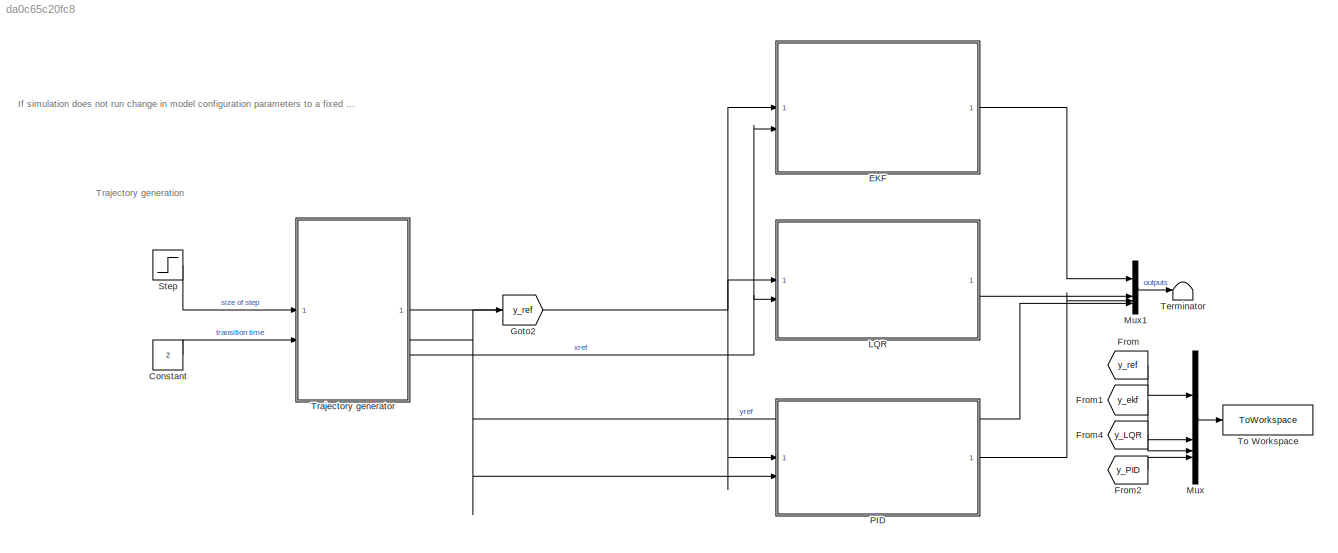
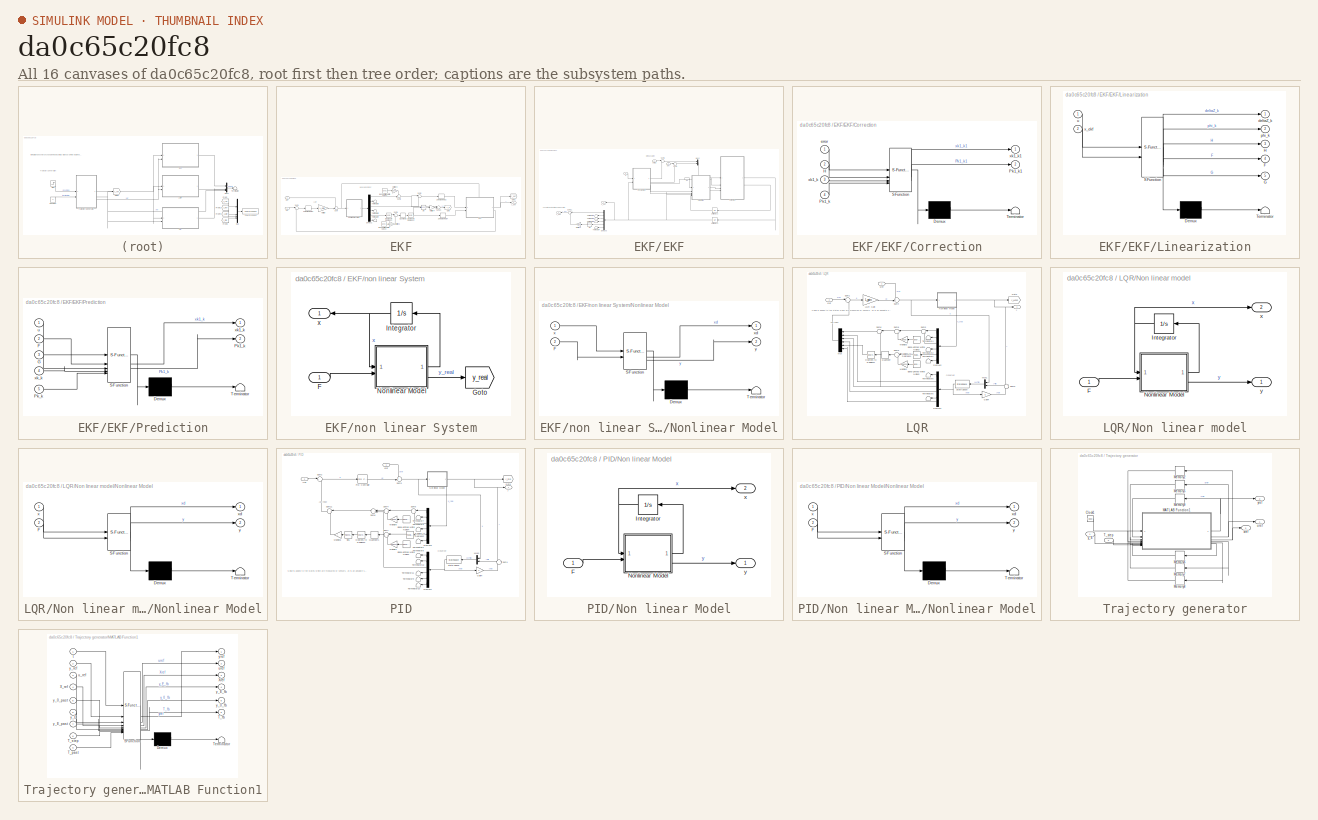
[diagram: thumbnail index - all 16 canvases of the model, root first then tree order]
MODEL slx_da0c65c20fc8
KIND model
CONFIG AbsTol = auto
CONFIG EnableMultiTasking = off
CONFIG FixedStep = 0.001
CONFIG MaxStep = auto
CONFIG MinStep = auto
CONFIG RelTol = 1e-3
CONFIG SampleTimeConstraint = Unconstrained
CONFIG SolverName = VariableStepAuto
CONFIG StartTime = 0.0
CONFIG StopTime = 10
BLOCK [Constant] Constant
  Value = 2
BLOCK [SubSystem] EKF
BLOCK [Reference] EKF/Band-Limited White Noise2  REF=simulink/Sources/Band-Limited
White Noise
  SourceBlock = simulink/Sources/Band-Limited\nWhite Noise
  SourceType = Band-Limited White Noise.
BLOCK [Reference] EKF/Band-Limited White Noise3  REF=simulink/Sources/Band-Limited
White Noise
  SourceBlock = simulink/Sources/Band-Limited\nWhite Noise
  SourceType = Band-Limited White Noise.
BLOCK [Reference] EKF/Degrees to Radians1  REF=simulink_extras/Transformations/Degrees to
Radians
  SourceBlock = simulink_extras/Transformations/Degrees to\nRadians
  SourceType = DegreesToRadians
BLOCK [Demux] EKF/Demux2
  Outputs = 6
BLOCK [SubSystem] EKF/EKF
  PortSchema = {"entries":[{"content":{"sides":[{"content":{"connectorIds":["In1","In2"]},"type":"ConnectorPlacement.EquallySpacedRectSide","uuid":"7d448900-18ad-41d5-8be7-5b2f8237e026"},{"content":{"connectorIds":["Out1","Out2"],"side":"RIGHT"},"type":"ConnectorPlacement.EquallySpacedRectSide","uuid":"f5f89615-8db2-446f-9ddf-3fbf985b739e"},{"content":{"connectorIds":["In3"],"side":"TOP"},"type":"ConnectorPlacem...<+258ch>
BLOCK [SubSystem] EKF/EKF/Correction
  ErrorFcn = Stateflow.Translate.translate
  PermitHierarchicalResolution = ExplicitOnly
  SFBlockType = MATLAB Function
  TreatAsAtomicUnit = on
BLOCK [Demux] EKF/EKF/Correction/ Demux 
  Outputs = 1
BLOCK [S-Function] EKF/EKF/Correction/ SFunction 
  EnableBusSupport = on
  FunctionName = sf_sfun
  Parameters = param
  PortCounts = [4 3]
  SFcnIsStateOwnerBlock = off
  SFunctionDeploymentMode = off
  Tag = Stateflow S-Function 9
BLOCK [Terminator] EKF/EKF/Correction/ Terminator 
BLOCK [Inport] EKF/EKF/Correction/H
  Port = 2
BLOCK [Inport] EKF/EKF/Correction/Pk1_k
  Port = 4
BLOCK [Outport] EKF/EKF/Correction/Pk1_k1
  Port = 2
BLOCK [Inport] EKF/EKF/Correction/error
BLOCK [Inport] EKF/EKF/Correction/xk1_k
  Port = 3
BLOCK [Outport] EKF/EKF/Correction/xk1_k1
BLOCK [Demux] EKF/EKF/Demux3
  Outputs = 6
BLOCK [SubSystem] EKF/EKF/Linearization
  ErrorFcn = Stateflow.Translate.translate
  PermitHierarchicalResolution = ExplicitOnly
  SFBlockType = MATLAB Function
  TreatAsAtomicUnit = on
BLOCK [Demux] EKF/EKF/Linearization/ Demux 
  Outputs = 1
BLOCK [S-Function] EKF/EKF/Linearization/ SFunction 
  EnableBusSupport = on
  FunctionName = sf_sfun
  Parameters = param
  PortCounts = [2 6]
  SFcnIsStateOwnerBlock = off
  SFunctionDeploymentMode = off
  Tag = Stateflow S-Function 8
BLOCK [Terminator] EKF/EKF/Linearization/ Terminator 
BLOCK [Outport] EKF/EKF/Linearization/F
  Port = 4
BLOCK [Outport] EKF/EKF/Linearization/G
  Port = 5
BLOCK [Outport] EKF/EKF/Linearization/H
  Port = 3
BLOCK [Outport] EKF/EKF/Linearization/deltaZ_k
BLOCK [Outport] EKF/EKF/Linearization/phi_k
  Port = 2
BLOCK [Inport] EKF/EKF/Linearization/u
BLOCK [Inport] EKF/EKF/Linearization/x_ekf
  Port = 2
BLOCK [Gain] EKF/EKF/Multiply2
  Gain = param.l
BLOCK [Mux] EKF/EKF/Mux2
  DisplayOption = bar
  Inputs = 2
BLOCK [SubSystem] EKF/EKF/Prediction
  ErrorFcn = Stateflow.Translate.translate
  PermitHierarchicalResolution = ExplicitOnly
  SFBlockType = MATLAB Function
  TreatAsAtomicUnit = on
BLOCK [Demux] EKF/EKF/Prediction/ Demux 
  Outputs = 1
BLOCK [S-Function] EKF/EKF/Prediction/ SFunction 
  EnableBusSupport = on
  FunctionName = sf_sfun
  Parameters = param
  PortCounts = [5 3]
  SFcnIsStateOwnerBlock = off
  SFunctionDeploymentMode = off
  Tag = Stateflow S-Function 7
BLOCK [Terminator] EKF/EKF/Prediction/ Terminator 
BLOCK [Inport] EKF/EKF/Prediction/F
  Port = 2
BLOCK [Inport] EKF/EKF/Prediction/G
  Port = 3
BLOCK [Outport] EKF/EKF/Prediction/Pk1_k
  Port = 2
BLOCK [Inport] EKF/EKF/Prediction/Pk_k
  Port = 5
BLOCK [Inport] EKF/EKF/Prediction/u
BLOCK [Outport] EKF/EKF/Prediction/xk1_k
BLOCK [Inport] EKF/EKF/Prediction/xk_k
  Port = 4
BLOCK [Trigonometry] EKF/EKF/Sin
BLOCK [Sum] EKF/EKF/Sum11
  Inputs = |++
BLOCK [Sum] EKF/EKF/Sum8
  Inputs = |+-
BLOCK [Sum] EKF/EKF/Sum9
  Inputs = |+-
BLOCK [Terminator] EKF/EKF/Terminator1
BLOCK [Terminator] EKF/EKF/Terminator2
BLOCK [Terminator] EKF/EKF/Terminator3
BLOCK [Terminator] EKF/EKF/Terminator4
BLOCK [UnitDelay] EKF/EKF/Unit Delay2
  HasFrameUpgradeWarning = on
  SampleTime = param.Ts
BLOCK [UnitDelay] EKF/EKF/Unit Delay3
  HasFrameUpgradeWarning = on
  InitialCondition = [0 0 0 0 0 0]'
  SampleTime = param.Ts
BLOCK [Inport] EKF/EKF/deltaz
BLOCK [Inport] EKF/EKF/phi
  Port = 2
BLOCK [Inport] EKF/EKF/u
  Port = 3
BLOCK [InportShadow] EKF/EKF/u1
  Port = 3
BLOCK [Outport] EKF/EKF/x_ekf
  Port = 2
BLOCK [Outport] EKF/EKF/y_ekf
BLOCK [Goto] EKF/Goto
  GotoTag = y_d
  TagVisibility = global
BLOCK [Goto] EKF/Goto1
  GotoTag = y_ekf
  TagVisibility = global
BLOCK [Gain] EKF/Multiply
  Gain = L_gain
  Multiplication = Matrix(K*u) (u vector)
BLOCK [Gain] EKF/Multiply2
  Gain = 360/1024
BLOCK [Gain] EKF/Multiply3
  Gain = 1/2000
BLOCK [Gain] EKF/Multiply4
  Gain = l
BLOCK [Quantizer] EKF/Quantizer2
  QuantizationInterval = 360/1024
BLOCK [Reference] EKF/Radians to Degrees1  REF=simulink_extras/Transformations/Radians
to Degrees
  SourceBlock = simulink_extras/Transformations/Radians\nto Degrees
  SourceType = RadiansToDegrees
BLOCK [Trigonometry] EKF/Sin
BLOCK [Sum] EKF/Sum
  Inputs = ++|
BLOCK [Sum] EKF/Sum1
  Inputs = |+-
BLOCK [Sum] EKF/Sum10
  Inputs = ++|
BLOCK [Sum] EKF/Sum2
  Inputs = |+-
BLOCK [Sum] EKF/Sum8
  Inputs = ++|
BLOCK [Sum] EKF/Sum9
  Inputs = |++
BLOCK [Terminator] EKF/Terminator4
BLOCK [Terminator] EKF/Terminator5
BLOCK [Terminator] EKF/Terminator6
BLOCK [ZeroOrderHold] EKF/Zero-Order Hold2
  SampleTime = param.Ts
BLOCK [ZeroOrderHold] EKF/Zero-Order Hold3
  SampleTime = param.Ts
BLOCK [ZeroOrderHold] EKF/Zero-Order Hold4
  SampleTime = param.Ts
BLOCK [SubSystem] EKF/non linear System
BLOCK [Inport] EKF/non linear System/F
BLOCK [Goto] EKF/non linear System/Goto
  GotoTag = y_real
  TagVisibility = global
BLOCK [Integrator] EKF/non linear System/Integrator
  InitialCondition = [0;0;0;0;0;0]
  NameLocation = top
BLOCK [SubSystem] EKF/non linear System/Nonlinear Model
  ErrorFcn = Stateflow.Translate.translate
  PermitHierarchicalResolution = ExplicitOnly
  SFBlockType = MATLAB Function
  TreatAsAtomicUnit = on
BLOCK [Demux] EKF/non linear System/Nonlinear Model/ Demux 
  Outputs = 1
BLOCK [S-Function] EKF/non linear System/Nonlinear Model/ SFunction 
  EnableBusSupport = on
  FunctionName = sf_sfun
  Parameters = param
  PortCounts = [2 3]
  SFcnIsStateOwnerBlock = off
  SFunctionDeploymentMode = off
  Tag = Stateflow S-Function 10
BLOCK [Terminator] EKF/non linear System/Nonlinear Model/ Terminator 
BLOCK [Inport] EKF/non linear System/Nonlinear Model/F
  Port = 2
BLOCK [Inport] EKF/non linear System/Nonlinear Model/x
BLOCK [Outport] EKF/non linear System/Nonlinear Model/xd
BLOCK [Outport] EKF/non linear System/Nonlinear Model/y
  Port = 2
BLOCK [Outport] EKF/non linear System/x
BLOCK [Inport] EKF/uref
BLOCK [Inport] EKF/xref
  Port = 2
BLOCK [Outport] EKF/y_ekf
BLOCK [From] From
  GotoTag = y_ref
  TagVisibility = global
BLOCK [From] From1
  GotoTag = y_ekf
  TagVisibility = global
BLOCK [From] From2
  GotoTag = y_PID
  TagVisibility = global
BLOCK [From] From4
  GotoTag = y_LQR
  TagVisibility = global
BLOCK [Goto] Goto2
  GotoTag = y_ref
  TagVisibility = global
BLOCK [SubSystem] LQR
BLOCK [Reference] LQR/Band-Limited White Noise2  REF=simulink/Sources/Band-Limited
White Noise
  NameLocation = top
  SourceBlock = simulink/Sources/Band-Limited\nWhite Noise
  SourceType = Band-Limited White Noise.
BLOCK [Reference] LQR/Band-Limited White Noise3  REF=simulink/Sources/Band-Limited
White Noise
  NameLocation = top
  SourceBlock = simulink/Sources/Band-Limited\nWhite Noise
  SourceType = Band-Limited White Noise.
BLOCK [Reference] LQR/Degrees to Radians1  REF=simulink_extras/Transformations/Degrees to
Radians
  NameLocation = top
  SourceBlock = simulink_extras/Transformations/Degrees to\nRadians
  SourceType = DegreesToRadians
BLOCK [Demux] LQR/Demux1
  NameLocation = top
  Outputs = 6
BLOCK [Demux] LQR/Demux2
  NameLocation = top
  Outputs = 6
BLOCK [Gain] LQR/Gain4
  Gain = C
  Multiplication = Matrix(K*u)
BLOCK [Goto] LQR/Goto
  GotoTag = y_LQR
  TagVisibility = global
BLOCK [Gain] LQR/LQR Gain
  Gain = L_gain
  Multiplication = Matrix(K*u) (u vector)
  NameLocation = top
BLOCK [Gain] LQR/Multiply2
  Gain = 360/1024
  NameLocation = top
BLOCK [Gain] LQR/Multiply3
  Gain = 1/2000
  NameLocation = top
BLOCK [Mux] LQR/Mux
  DisplayOption = bar
  Inputs = 6
  NameLocation = top
BLOCK [Mux] LQR/Mux1
  DisplayOption = bar
  Inputs = 2
  NameLocation = top
BLOCK [SubSystem] LQR/Non linear model
  NameLocation = top
  PortSchema = {"entries":[{"content":{"sides":[{"content":{"connectorIds":["In1"]},"type":"ConnectorPlacement.EquallySpacedRectSide","uuid":"1168ee74-8fd3-4705-8c7a-3655de58a2af"},{"content":{"connectorIds":["Out1"],"side":"RIGHT"},"type":"ConnectorPlacement.EquallySpacedRectSide","uuid":"a82eda53-f6cc-410c-ba8f-7e45612c6547"},{"content":{"side":"TOP"},"type":"ConnectorPlacement.EquallySpacedRectSide","uuid":"a...<+372ch>
BLOCK [Inport] LQR/Non linear model/F
BLOCK [Integrator] LQR/Non linear model/Integrator
  InitialCondition = [0;0;0;0;0;0]
  NameLocation = top
BLOCK [SubSystem] LQR/Non linear model/Nonlinear Model
  ErrorFcn = Stateflow.Translate.translate
  PermitHierarchicalResolution = ExplicitOnly
  SFBlockType = MATLAB Function
  TreatAsAtomicUnit = on
BLOCK [Demux] LQR/Non linear model/Nonlinear Model/ Demux 
  Outputs = 1
BLOCK [S-Function] LQR/Non linear model/Nonlinear Model/ SFunction 
  EnableBusSupport = on
  FunctionName = sf_sfun
  Parameters = param
  PortCounts = [2 3]
  SFcnIsStateOwnerBlock = off
  SFunctionDeploymentMode = off
  Tag = Stateflow S-Function 2
BLOCK [Terminator] LQR/Non linear model/Nonlinear Model/ Terminator 
BLOCK [Inport] LQR/Non linear model/Nonlinear Model/F
  Port = 2
BLOCK [Inport] LQR/Non linear model/Nonlinear Model/x
BLOCK [Outport] LQR/Non linear model/Nonlinear Model/xd
BLOCK [Outport] LQR/Non linear model/Nonlinear Model/y
  Port = 2
BLOCK [Outport] LQR/Non linear model/x
  Port = 2
BLOCK [Outport] LQR/Non linear model/y
BLOCK [Quantizer] LQR/Quantizer
  NameLocation = top
  QuantizationInterval = 360/1024
BLOCK [Reference] LQR/Radians to Degrees1  REF=simulink_extras/Transformations/Radians
to Degrees
  NameLocation = top
  SourceBlock = simulink_extras/Transformations/Radians\nto Degrees
  SourceType = RadiansToDegrees
BLOCK [StateSpace] LQR/State-Space
  A = system_l.A
  B = [B LD']
  C = eye(6)
  D = zeros(6,2)
  InitialCondition = 0
  NameLocation = top
BLOCK [Sum] LQR/Sum1
  Inputs = |+-
BLOCK [Sum] LQR/Sum3
  Inputs = +|-
BLOCK [Sum] LQR/Sum4
  Inputs = ++|
BLOCK [Sum] LQR/Sum5
  Inputs = |+-
  NameLocation = top
BLOCK [Sum] LQR/Sum6
  Inputs = |++
  NameLocation = top
BLOCK [Sum] LQR/Sum8
  Inputs = |++
  NameLocation = top
BLOCK [Sum] LQR/Sum9
  Inputs = |++
  NameLocation = top
BLOCK [Terminator] LQR/Terminator1
  NameLocation = top
BLOCK [Terminator] LQR/Terminator2
  NameLocation = top
BLOCK [Terminator] LQR/Terminator4
  NameLocation = top
BLOCK [Terminator] LQR/Terminator5
  NameLocation = top
BLOCK [Terminator] LQR/Terminator6
  NameLocation = top
BLOCK [Inport] LQR/uref
BLOCK [Inport] LQR/xref
  Port = 2
BLOCK [Outport] LQR/y
BLOCK [Mux] Mux
  DisplayOption = bar
BLOCK [Mux] Mux1
  DisplayOption = bar
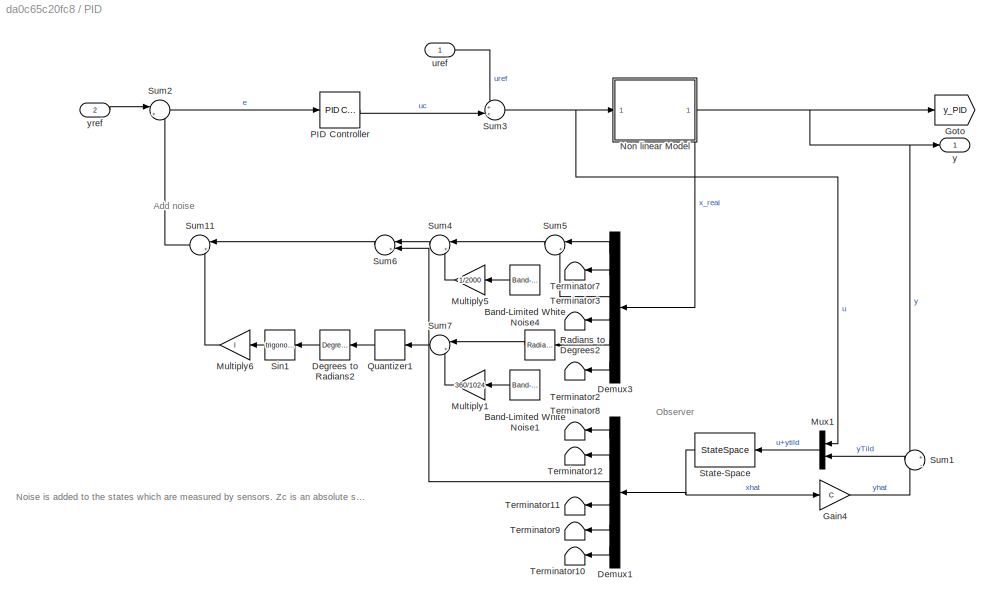
BLOCK [SubSystem] PID
BLOCK [Reference] PID/Band-Limited White Noise1  REF=simulink/Sources/Band-Limited
White Noise
  NameLocation = top
  SourceBlock = simulink/Sources/Band-Limited\nWhite Noise
  SourceType = Band-Limited White Noise.
BLOCK [Reference] PID/Band-Limited White Noise4  REF=simulink/Sources/Band-Limited
White Noise
  NameLocation = top
  SourceBlock = simulink/Sources/Band-Limited\nWhite Noise
  SourceType = Band-Limited White Noise.
BLOCK [Reference] PID/Degrees to Radians2  REF=simulink_extras/Transformations/Degrees to
Radians
  NameLocation = top
  SourceBlock = simulink_extras/Transformations/Degrees to\nRadians
  SourceType = DegreesToRadians
BLOCK [Demux] PID/Demux1
  NameLocation = top
  Outputs = 6
BLOCK [Demux] PID/Demux3
  NameLocation = top
  Outputs = 6
BLOCK [Gain] PID/Gain4
  Gain = C
  Multiplication = Matrix(K*u)
BLOCK [Goto] PID/Goto
  GotoTag = y_PID
  TagVisibility = global
BLOCK [Gain] PID/Multiply1
  Gain = 360/1024
  NameLocation = top
BLOCK [Gain] PID/Multiply5
  Gain = 1/2000
  NameLocation = top
BLOCK [Gain] PID/Multiply6
  Gain = l
  NameLocation = top
BLOCK [Mux] PID/Mux1
  DisplayOption = bar
  Inputs = 2
  NameLocation = top
BLOCK [SubSystem] PID/Non linear Model
  NameLocation = top
  PortSchema = {"entries":[{"content":{"sides":[{"content":{"connectorIds":["In1"]},"type":"ConnectorPlacement.EquallySpacedRectSide","uuid":"1168ee74-8fd3-4705-8c7a-3655de58a2af"},{"content":{"connectorIds":["Out1"],"side":"RIGHT"},"type":"ConnectorPlacement.EquallySpacedRectSide","uuid":"a82eda53-f6cc-410c-ba8f-7e45612c6547"},{"content":{"side":"TOP"},"type":"ConnectorPlacement.EquallySpacedRectSide","uuid":"a...<+372ch>
BLOCK [Inport] PID/Non linear Model/F
BLOCK [Integrator] PID/Non linear Model/Integrator
  InitialCondition = [0;0;0;0;0;0]
  NameLocation = top
BLOCK [SubSystem] PID/Non linear Model/Nonlinear Model
  ErrorFcn = Stateflow.Translate.translate
  PermitHierarchicalResolution = ExplicitOnly
  SFBlockType = MATLAB Function
  TreatAsAtomicUnit = on
BLOCK [Demux] PID/Non linear Model/Nonlinear Model/ Demux 
  Outputs = 1
BLOCK [S-Function] PID/Non linear Model/Nonlinear Model/ SFunction 
  EnableBusSupport = on
  FunctionName = sf_sfun
  Parameters = param
  PortCounts = [2 3]
  SFcnIsStateOwnerBlock = off
  SFunctionDeploymentMode = off
  Tag = Stateflow S-Function 1
BLOCK [Terminator] PID/Non linear Model/Nonlinear Model/ Terminator 
BLOCK [Inport] PID/Non linear Model/Nonlinear Model/F
  Port = 2
BLOCK [Inport] PID/Non linear Model/Nonlinear Model/x
BLOCK [Outport] PID/Non linear Model/Nonlinear Model/xd
BLOCK [Outport] PID/Non linear Model/Nonlinear Model/y
  Port = 2
BLOCK [Outport] PID/Non linear Model/x
  Port = 2
BLOCK [Outport] PID/Non linear Model/y
BLOCK [Reference] PID/PID Controller  REF=slpidlib/PID Controller
  SourceBlock = slpidlib/PID Controller
  SourceType = PID 1dof
BLOCK [Quantizer] PID/Quantizer1
  NameLocation = top
  QuantizationInterval = 360/1024
BLOCK [Reference] PID/Radians to Degrees2  REF=simulink_extras/Transformations/Radians
to Degrees
  NameLocation = top
  SourceBlock = simulink_extras/Transformations/Radians\nto Degrees
  SourceType = RadiansToDegrees
BLOCK [Trigonometry] PID/Sin1
  NameLocation = top
BLOCK [StateSpace] PID/State-Space
  A = system_l.A
  B = [B LD']
  C = eye(6)
  D = zeros(6,2)
  InitialCondition = 0
  NameLocation = top
BLOCK [Sum] PID/Sum1
  Inputs = +|-
BLOCK [Sum] PID/Sum11
  Inputs = |++
  NameLocation = top
BLOCK [Sum] PID/Sum2
  Inputs = |+-
BLOCK [Sum] PID/Sum3
  Inputs = ++|
BLOCK [Sum] PID/Sum4
  Inputs = |++
  NameLocation = top
BLOCK [Sum] PID/Sum5
  Inputs = |+-
  NameLocation = top
BLOCK [Sum] PID/Sum6
  Inputs = |++
  NameLocation = top
BLOCK [Sum] PID/Sum7
  Inputs = |++
  NameLocation = top
BLOCK [Terminator] PID/Terminator10
  NameLocation = top
BLOCK [Terminator] PID/Terminator11
  NameLocation = top
BLOCK [Terminator] PID/Terminator12
  NameLocation = top
BLOCK [Terminator] PID/Terminator2
  NameLocation = top
BLOCK [Terminator] PID/Terminator3
  NameLocation = top
BLOCK [Terminator] PID/Terminator7
  NameLocation = top
BLOCK [Terminator] PID/Terminator8
  NameLocation = top
BLOCK [Terminator] PID/Terminator9
  NameLocation = top
BLOCK [Inport] PID/uref
BLOCK [Outport] PID/y
BLOCK [Inport] PID/yref
  Port = 2
BLOCK [Step] Step
  After = 2
  SampleTime = 0
  Time = 0
BLOCK [Terminator] Terminator
BLOCK [ToWorkspace] To Workspace
  FixptAsFi = on
  MaxDataPoints = inf
  SampleTime = -1
  SaveFormat = Timeseries
  VariableName = simout
BLOCK [SubSystem] Trajectory generator
BLOCK [Clock] Trajectory generator/Clock1
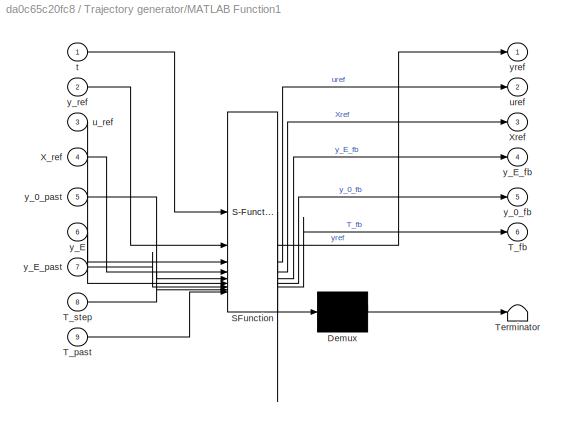
BLOCK [SubSystem] Trajectory generator/MATLAB Function1
  ErrorFcn = Stateflow.Translate.translate
  PermitHierarchicalResolution = ExplicitOnly
  SFBlockType = MATLAB Function
  TreatAsAtomicUnit = on
BLOCK [Demux] Trajectory generator/MATLAB Function1/ Demux 
  Outputs = 1
BLOCK [S-Function] Trajectory generator/MATLAB Function1/ SFunction 
  EnableBusSupport = on
  FunctionName = sf_sfun
  Parameters = A,B,dT,denum,num
  PortCounts = [9 7]
  SFcnIsStateOwnerBlock = off
  SFunctionDeploymentMode = off
  Tag = Stateflow S-Function 3
BLOCK [Terminator] Trajectory generator/MATLAB Function1/ Terminator 
BLOCK [Outport] Trajectory generator/MATLAB Function1/T_fb
  Port = 6
BLOCK [Inport] Trajectory generator/MATLAB Function1/T_past
  Port = 9
BLOCK [Inport] Trajectory generator/MATLAB Function1/T_step
  Port = 8
BLOCK [Inport] Trajectory generator/MATLAB Function1/X_ref
  Port = 4
BLOCK [Outport] Trajectory generator/MATLAB Function1/Xref
  Port = 3
BLOCK [Inport] Trajectory generator/MATLAB Function1/t
BLOCK [Inport] Trajectory generator/MATLAB Function1/u_ref
  Port = 3
BLOCK [Outport] Trajectory generator/MATLAB Function1/uref
  Port = 2
BLOCK [Outport] Trajectory generator/MATLAB Function1/y_0_fb
  Port = 5
BLOCK [Inport] Trajectory generator/MATLAB Function1/y_0_past
  Port = 5
BLOCK [Inport] Trajectory generator/MATLAB Function1/y_E
  Port = 6
BLOCK [Outport] Trajectory generator/MATLAB Function1/y_E_fb
  Port = 4
BLOCK [Inport] Trajectory generator/MATLAB Function1/y_E_past
  Port = 7
BLOCK [Inport] Trajectory generator/MATLAB Function1/y_ref
  Port = 2
BLOCK [Outport] Trajectory generator/MATLAB Function1/yref
BLOCK [Memory] Trajectory generator/Memory2
  InitialCondition = zeros(6,1)
  NameLocation = top
BLOCK [Memory] Trajectory generator/Memory5
  NameLocation = top
BLOCK [Memory] Trajectory generator/Memory6
  NameLocation = top
BLOCK [Memory] Trajectory generator/Memory7
  NameLocation = top
BLOCK [Memory] Trajectory generator/Memory8
  NameLocation = top
BLOCK [Memory] Trajectory generator/Memory9
  NameLocation = top
BLOCK [Inport] Trajectory generator/T_step
  Port = 2
BLOCK [Outport] Trajectory generator/uref
BLOCK [Outport] Trajectory generator/xref
  Port = 3
BLOCK [Inport] Trajectory generator/y_E
BLOCK [Outport] Trajectory generator/yref
  Port = 2
ANNOTATION (root): If simulation does not run change in model configuration parameters to a fixed step size with 0.0001. Sometime this does the trick.
ANNOTATION (root): Trajectory generation
ANNOTATION EKF: LQR
ANNOTATION EKF: Measured Output
ANNOTATION EKF/EKF: Error Calculation
ANNOTATION EKF/EKF: Theoretical output of the Kalmann Filter
ANNOTATION LQR: Add noise
ANNOTATION LQR: Noise is added to the states which are measured by sensors. Zc is an absolute state but in real world the sensor is on the base of the crane and measures only the relative position. So this needs to be adjusted aswell.
ANNOTATION LQR: Observer
ANNOTATION PID: Add noise
ANNOTATION PID: Noise is added to the states which are measured by sensors. Zc is an absolute state but in real world the sensor is on the base of the crane and measures only the relative position. So this needs to be adjusted aswell.
ANNOTATION PID: Observer
LINE Constant:1 -> Trajectory generator:2
LINE EKF/Band-Limited White Noise2:1 -> EKF/Multiply2:1
LINE EKF/Band-Limited White Noise3:1 -> EKF/Multiply3:1
NET EKF/Degrees to Radians1:1 -> EKF/Sin:1, EKF/Zero-Order Hold4:1
LINE EKF/Demux2:1 -> EKF/Sum8:2
LINE EKF/Demux2:2 -> EKF/Terminator6:1
LINE EKF/Demux2:3 -> EKF/Sum2:2
LINE EKF/Demux2:4 -> EKF/Terminator5:1
LINE EKF/Demux2:5 -> EKF/Radians to Degrees1:1
LINE EKF/Demux2:6 -> EKF/Terminator4:1
LINE EKF/EKF/Correction:1 -> EKF/EKF/Unit Delay3:1
LINE EKF/EKF/Correction:2 -> EKF/EKF/Unit Delay2:1
LINE EKF/EKF/Demux3:1 -> EKF/EKF/Sum11:1
LINE EKF/EKF/Demux3:2 -> EKF/EKF/Terminator1:1
LINE EKF/EKF/Demux3:3 -> EKF/EKF/Terminator2:1
LINE EKF/EKF/Demux3:4 -> EKF/EKF/Terminator3:1
LINE EKF/EKF/Demux3:5 -> EKF/EKF/Sin:1
LINE EKF/EKF/Demux3:6 -> EKF/EKF/Terminator4:1
LINE EKF/EKF/Linearization:1 -> EKF/EKF/Sum8:2
LINE EKF/EKF/Linearization:2 -> EKF/EKF/Sum9:2
LINE EKF/EKF/Linearization:3 -> EKF/EKF/Correction:2
LINE EKF/EKF/Linearization:4 -> EKF/EKF/Prediction:2
LINE EKF/EKF/Linearization:5 -> EKF/EKF/Prediction:3
LINE EKF/EKF/Multiply2:1 -> EKF/EKF/Sum11:2
LINE EKF/EKF/Mux2:1 -> EKF/EKF/Correction:1
LINE EKF/EKF/Prediction:1 -> EKF/EKF/Correction:3
LINE EKF/EKF/Prediction:2 -> EKF/EKF/Correction:4
LINE EKF/EKF/Sin:1 -> EKF/EKF/Multiply2:1
LINE EKF/EKF/Sum11:1 -> EKF/EKF/y_ekf:1
LINE EKF/EKF/Sum8:1 -> EKF/EKF/Mux2:1
LINE EKF/EKF/Sum9:1 -> EKF/EKF/Mux2:2
LINE EKF/EKF/Unit Delay2:1 -> EKF/EKF/Prediction:5
NET EKF/EKF/Unit Delay3:1 -> EKF/EKF/Demux3:1, EKF/EKF/Linearization:2, EKF/EKF/Prediction:4, EKF/EKF/x_ekf:1
LINE EKF/EKF/deltaz:1 -> EKF/EKF/Sum8:1
LINE EKF/EKF/phi:1 -> EKF/EKF/Sum9:1
LINE EKF/EKF/u1:1 -> EKF/EKF/Prediction:1
LINE EKF/EKF/u:1 -> EKF/EKF/Linearization:1
NET EKF/EKF:1 -> EKF/Goto1:1, EKF/y_ekf:1
LINE EKF/EKF:2 -> EKF/Sum1:2
LINE EKF/Multiply2:1 -> EKF/Sum9:2
LINE EKF/Multiply3:1 -> EKF/Sum8:1
LINE EKF/Multiply4:1 -> EKF/Sum10:2
LINE EKF/Multiply:1 -> EKF/Sum:2
LINE EKF/Quantizer2:1 -> EKF/Degrees to Radians1:1
LINE EKF/Radians to Degrees1:1 -> EKF/Sum9:1
LINE EKF/Sin:1 -> EKF/Multiply4:1
LINE EKF/Sum10:1 -> EKF/Goto:1
LINE EKF/Sum1:1 -> EKF/Zero-Order Hold3:1
LINE EKF/Sum2:1 -> EKF/Zero-Order Hold2:1
NET EKF/Sum8:1 -> EKF/Sum10:1, EKF/Sum2:1
LINE EKF/Sum9:1 -> EKF/Quantizer2:1
NET EKF/Sum:1 -> EKF/EKF:3, EKF/non linear System:1
LINE EKF/Zero-Order Hold2:1 -> EKF/EKF:1
LINE EKF/Zero-Order Hold3:1 -> EKF/Multiply:1
LINE EKF/Zero-Order Hold4:1 -> EKF/EKF:2
LINE EKF/non linear System/F:1 -> EKF/non linear System/Nonlinear Model:2
NET EKF/non linear System/Integrator:1 -> EKF/non linear System/Nonlinear Model:1, EKF/non linear System/x:1
LINE EKF/non linear System/Nonlinear Model:1 -> EKF/non linear System/Integrator:1
LINE EKF/non linear System/Nonlinear Model:2 -> EKF/non linear System/Goto:1
LINE EKF/non linear System:1 -> EKF/Demux2:1
LINE EKF/uref:1 -> EKF/Sum:1
LINE EKF/xref:1 -> EKF/Sum1:1
LINE EKF:1 -> Mux1:1
LINE From1:1 -> Mux:2
LINE From2:1 -> Mux:4
LINE From4:1 -> Mux:3
LINE From:1 -> Mux:1
LINE LQR/Band-Limited White Noise2:1 -> LQR/Multiply2:1
LINE LQR/Band-Limited White Noise3:1 -> LQR/Multiply3:1
LINE LQR/Degrees to Radians1:1 -> LQR/Mux:5
LINE LQR/Demux1:1 -> LQR/Terminator5:1
LINE LQR/Demux1:2 -> LQR/Mux:2
NET LQR/Demux1:3 -> LQR/Mux:3, LQR/Sum6:2
LINE LQR/Demux1:4 -> LQR/Mux:4
LINE LQR/Demux1:5 -> LQR/Terminator6:1
LINE LQR/Demux1:6 -> LQR/Mux:6
LINE LQR/Demux2:1 -> LQR/Sum5:1
LINE LQR/Demux2:2 -> LQR/Terminator4:1
LINE LQR/Demux2:3 -> LQR/Sum5:2
LINE LQR/Demux2:4 -> LQR/Terminator2:1
LINE LQR/Demux2:5 -> LQR/Radians to Degrees1:1
LINE LQR/Demux2:6 -> LQR/Terminator1:1
LINE LQR/Gain4:1 -> LQR/Sum3:2
LINE LQR/LQR Gain:1 -> LQR/Sum4:2
LINE LQR/Multiply2:1 -> LQR/Sum9:2
LINE LQR/Multiply3:1 -> LQR/Sum8:2
LINE LQR/Mux1:1 -> LQR/State-Space:1
LINE LQR/Mux:1 -> LQR/Sum1:2
LINE LQR/Non linear model/F:1 -> LQR/Non linear model/Nonlinear Model:2
NET LQR/Non linear model/Integrator:1 -> LQR/Non linear model/Nonlinear Model:1, LQR/Non linear model/x:1
LINE LQR/Non linear model/Nonlinear Model:1 -> LQR/Non linear model/Integrator:1
LINE LQR/Non linear model/Nonlinear Model:2 -> LQR/Non linear model/y:1
NET LQR/Non linear model:1 -> LQR/Goto:1, LQR/Sum3:1, LQR/y:1
LINE LQR/Non linear model:2 -> LQR/Demux2:1
LINE LQR/Quantizer:1 -> LQR/Degrees to Radians1:1
LINE LQR/Radians to Degrees1:1 -> LQR/Sum9:1
NET LQR/State-Space:1 -> LQR/Demux1:1, LQR/Gain4:1
LINE LQR/Sum1:1 -> LQR/LQR Gain:1
LINE LQR/Sum3:1 -> LQR/Mux1:2
NET LQR/Sum4:1 -> LQR/Mux1:1, LQR/Non linear model:1
LINE LQR/Sum5:1 -> LQR/Sum8:1
LINE LQR/Sum6:1 -> LQR/Mux:1
LINE LQR/Sum8:1 -> LQR/Sum6:1
LINE LQR/Sum9:1 -> LQR/Quantizer:1
LINE LQR/uref:1 -> LQR/Sum4:1
LINE LQR/xref:1 -> LQR/Sum1:1
LINE LQR:1 -> Mux1:2
LINE Mux1:1 -> Terminator:1
LINE Mux:1 -> To Workspace:1
LINE PID/Band-Limited White Noise1:1 -> PID/Multiply1:1
LINE PID/Band-Limited White Noise4:1 -> PID/Multiply5:1
LINE PID/Degrees to Radians2:1 -> PID/Sin1:1
LINE PID/Demux1:1 -> PID/Terminator8:1
LINE PID/Demux1:2 -> PID/Terminator12:1
LINE PID/Demux1:3 -> PID/Sum6:2
LINE PID/Demux1:4 -> PID/Terminator11:1
LINE PID/Demux1:5 -> PID/Terminator9:1
LINE PID/Demux1:6 -> PID/Terminator10:1
LINE PID/Demux3:1 -> PID/Sum5:1
LINE PID/Demux3:2 -> PID/Terminator7:1
LINE PID/Demux3:3 -> PID/Sum5:2
LINE PID/Demux3:4 -> PID/Terminator3:1
LINE PID/Demux3:5 -> PID/Radians to Degrees2:1
LINE PID/Demux3:6 -> PID/Terminator2:1
LINE PID/Gain4:1 -> PID/Sum1:2
LINE PID/Multiply1:1 -> PID/Sum7:2
LINE PID/Multiply5:1 -> PID/Sum4:2
LINE PID/Multiply6:1 -> PID/Sum11:2
LINE PID/Mux1:1 -> PID/State-Space:1
LINE PID/Non linear Model/F:1 -> PID/Non linear Model/Nonlinear Model:2
NET PID/Non linear Model/Integrator:1 -> PID/Non linear Model/Nonlinear Model:1, PID/Non linear Model/x:1
LINE PID/Non linear Model/Nonlinear Model:1 -> PID/Non linear Model/Integrator:1
LINE PID/Non linear Model/Nonlinear Model:2 -> PID/Non linear Model/y:1
NET PID/Non linear Model:1 -> PID/Goto:1, PID/Sum1:1, PID/y:1
LINE PID/Non linear Model:2 -> PID/Demux3:1
LINE PID/PID Controller:1 -> PID/Sum3:2
LINE PID/Quantizer1:1 -> PID/Degrees to Radians2:1
LINE PID/Radians to Degrees2:1 -> PID/Sum7:1
LINE PID/Sin1:1 -> PID/Multiply6:1
NET PID/State-Space:1 -> PID/Demux1:1, PID/Gain4:1
LINE PID/Sum11:1 -> PID/Sum2:2
LINE PID/Sum1:1 -> PID/Mux1:2
LINE PID/Sum2:1 -> PID/PID Controller:1
NET PID/Sum3:1 -> PID/Mux1:1, PID/Non linear Model:1
LINE PID/Sum4:1 -> PID/Sum6:1
LINE PID/Sum5:1 -> PID/Sum4:1
LINE PID/Sum6:1 -> PID/Sum11:1
LINE PID/Sum7:1 -> PID/Quantizer1:1
LINE PID/uref:1 -> PID/Sum3:1
LINE PID/yref:1 -> PID/Sum2:1
LINE PID:1 -> Mux1:3
LINE Step:1 -> Trajectory generator:1
LINE Trajectory generator/Clock1:1 -> Trajectory generator/MATLAB Function1:1
NET Trajectory generator/MATLAB Function1:1 -> Trajectory generator/Memory9:1, Trajectory generator/yref:1
NET Trajectory generator/MATLAB Function1:2 -> Trajectory generator/Memory5:1, Trajectory generator/uref:1
NET Trajectory generator/MATLAB Function1:3 -> Trajectory generator/Memory2:1, Trajectory generator/xref:1
LINE Trajectory generator/MATLAB Function1:4 -> Trajectory generator/Memory7:1
LINE Trajectory generator/MATLAB Function1:5 -> Trajectory generator/Memory8:1
LINE Trajectory generator/MATLAB Function1:6 -> Trajectory generator/Memory6:1
LINE Trajectory generator/Memory2:1 -> Trajectory generator/MATLAB Function1:4
LINE Trajectory generator/Memory5:1 -> Trajectory generator/MATLAB Function1:3
LINE Trajectory generator/Memory6:1 -> Trajectory generator/MATLAB Function1:9
LINE Trajectory generator/Memory7:1 -> Trajectory generator/MATLAB Function1:7
LINE Trajectory generator/Memory8:1 -> Trajectory generator/MATLAB Function1:5
LINE Trajectory generator/Memory9:1 -> Trajectory generator/MATLAB Function1:2
LINE Trajectory generator/T_step:1 -> Trajectory generator/MATLAB Function1:8
LINE Trajectory generator/y_E:1 -> Trajectory generator/MATLAB Function1:6
NET Trajectory generator:1 -> EKF:1, LQR:1, PID:1
NET Trajectory generator:2 -> Goto2:1, Mux1:4, PID:2
NET Trajectory generator:3 -> EKF:2, LQR:2
note: NET lines group one-source signal fan-out (src -> all destinations, sorted); 1:1 wires keep LINE
CHART EKF/EKF/Prediction states=1 transitions=1
  STATE_LABEL 'eML_blk_kernel()'
  STATE_LABEL "SCRIPT:\nfunction [xk1_k, Pk1_k] = prediction(u, F, G, xk_k, Pk_k, param)\nQ = param.Q;\n\nxk1_k = F*xk_k+G*u;\n\n\nPk1_k = F*Pk_k*F'+Q;\n\n"
CHART EKF/EKF/Linearization states=1 transitions=1
  STATE_LABEL 'eML_blk_kernel()'
  STATE_LABEL 'SCRIPT:\nfunction [deltaZ_k, phi_k, H, F, G] = jacob(u, x_ekf,param)\n\n    %get parameters from param\n    mb = param.mb;\n    mc = param.mc;\n    ml = param.ml;\n    \n    kb = param.kb;\n    kc = param.kc;\n    \n    db = param.db;\n    dc = param.dc;\n    \n    l  = param.l;\n    g  = param.g;\n    Ts= param.Ts;\n    \n    %reconstruction states\n    Zc = x_ekf(1);\n    dZc = x_ekf(2);\n    Zb = x_ekf(3);\n    dZb ...<+1651ch>'
CHART EKF/EKF/Correction states=1 transitions=1
  STATE_LABEL 'eML_blk_kernel()'
  STATE_LABEL "SCRIPT:\nfunction [xk1_k1, Pk1_k1] = correction(error, H, xk1_k, Pk1_k, param)\n    Q = param.Q;\n    R = param.R;\n\n    K = Pk1_k*H'/(H*Pk1_k*H'+R);\n\n    xk1_k1 = xk1_k+K*(error);\n\n    Pk1_k1 = (eye(6)-K*H)*Pk1_k;\n"
CHART EKF/non linear System/Nonlinear Model states=1 transitions=1
  STATE_LABEL 'eML_blk_kernel()'
  STATE_LABEL 'SCRIPT:\nfunction [xd, y]   = fcn(x,F,param)\n% get variables\ndc=param.dc;\ndb_real=param.db_real;\nkb=param.kb;\nl=param.l;\nml=param.ml;\nmc=param.mc;\nmb_real=param.mb_real;\ng=param.g;\n\n%This is the non linear state space modell\nxd=zeros(6,1);\n%get states from x\nzc=x(1);\nzcd=x(2);\nzb=x(3);\nzbd=x(4);\nphi=x(5);\nphid=x(6);\n\n%Line for zcd\nxd(1)=zcd;\n%line for zcdd\nxd(2)=(-zcd*dc+zbd*dc+phid^2*l*ml*sin(phi)...<+351ch>'  <repeated x3 — deduplicated; at blocks: Nonlinear Model>
CHART PID/Non linear Model/Nonlinear Model states=1 transitions=1
  STATE_LABEL 'eML_blk_kernel()'
CHART LQR/Non linear model/Nonlinear Model states=1 transitions=1
  STATE_LABEL 'eML_blk_kernel()'
CHART Trajectory generator/MATLAB Function1 states=1 transitions=1
  STATE_LABEL 'eML_blk_kernel()'
  STATE_LABEL 'SCRIPT:\nfunction [yref, uref, Xref, y_E_fb, y_0_fb, T_fb] = trajectory_planning(t, y_ref, u_ref, X_ref, y_0_past, y_E, y_E_past, T_step, T_past,num, denum, dT, A, B)\n    % t: Current simulation time\n    % y_0: Initial position\n    % y_T: Desired position\n    % T: Duration of the trajectory\n    % num: Numerator of the Transferfunction\n    % denum: Denumerator of the Transferfunction\n    % n: Order ...<+1347ch>'
CHART  states=0 transitions=0
CHART  states=0 transitions=0
CHART  states=0 transitions=0
CHART  states=0 transitions=0
CHART  states=0 transitions=0
CHART  states=0 transitions=0
CHART  states=0 transitions=0
